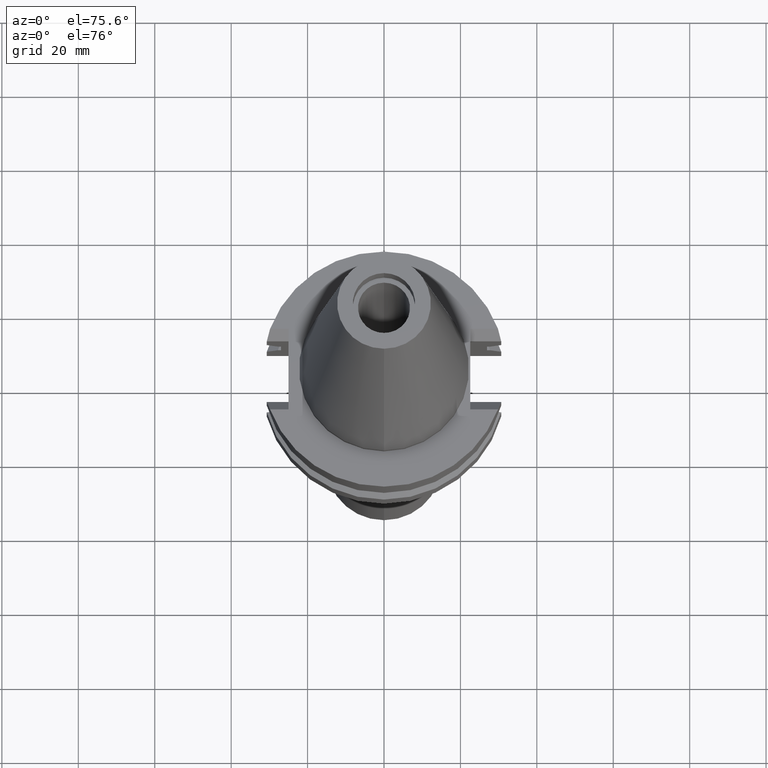
[diagram: clean part render]
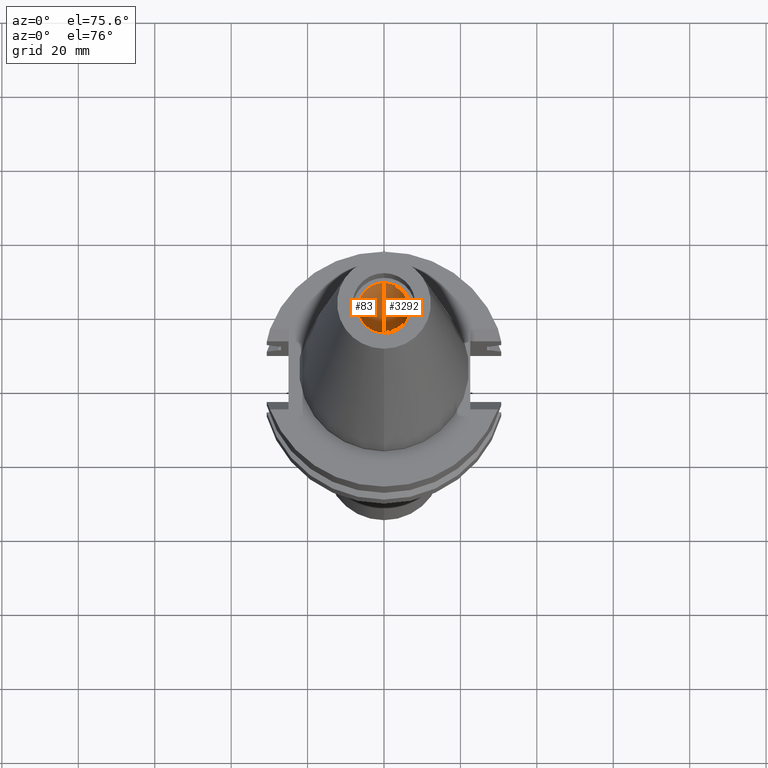
[diagram: same view with one multi-face feature highlighted, each face labeled with its STEP entity id]
A machine part, auxiliary view. The highlighted faces form ONE feature: a constant-radius fillet chain: 2 tangent blend faces with common blend radius 6.8 mm. The faces share edges in the B-rep.
Their STEP definitions:
[1] entity #3292 (Cylinder):
#47 = DIRECTION ( 'NONE',  ( 0.0000000000000000000, -1.000000000000000000, 0.0000000000000000000 ) ) ;
#79 = ORIENTED_EDGE ( 'NONE', *, *, #1282, .F. ) ;
#95 = VERTEX_POINT ( 'NONE', #2217 ) ;
#107 = DIRECTION ( 'NONE',  ( 0.0000000000000000000, -1.000000000000000000, 0.0000000000000000000 ) ) ;
#224 = CARTESIAN_POINT ( 'NONE',  ( 0.0000000000000000000, 6.799999999999999822, 1.136868377215999875E-13 ) ) ;
#322 = VERTEX_POINT ( 'NONE', #2047 ) ;
#593 = EDGE_CURVE ( 'NONE', #95, #859, #2732, .T. ) ;
#771 = DIRECTION ( 'NONE',  ( 0.0000000000000000000, 0.0000000000000000000, 1.000000000000000000 ) ) ;
#784 = CARTESIAN_POINT ( 'NONE',  ( 0.0000000000000000000, 0.0000000000000000000, 1.278976924367999843E-13 ) ) ;
#829 = CARTESIAN_POINT ( 'NONE',  ( 0.0000000000000000000, -6.799999999999999822, 1.136868377215999875E-13 ) ) ;
#836 = EDGE_CURVE ( 'NONE', #1010, #322, #2077, .T. ) ;
#859 = VERTEX_POINT ( 'NONE', #2636 ) ;
#864 = DIRECTION ( 'NONE',  ( 0.0000000000000000000, 0.0000000000000000000, -1.000000000000000000 ) ) ;
#872 = VECTOR ( 'NONE', #1329, 1000.000000000000000 ) ;
#1010 = VERTEX_POINT ( 'NONE', #829 ) ;
#1022 = DIRECTION ( 'NONE',  ( 0.0000000000000000000, -1.000000000000000000, 0.0000000000000000000 ) ) ;
#1024 = CIRCLE ( 'NONE', #1189, 6.799999999999999822 ) ;
#1086 = CARTESIAN_POINT ( 'NONE',  ( 0.0000000000000000000, 0.0000000000000000000, 76.24250000000000682 ) ) ;
#1189 = AXIS2_PLACEMENT_3D ( 'NONE', #784, #771, #1022 ) ;
#1253 = ORIENTED_EDGE ( 'NONE', *, *, #593, .F. ) ;
#1282 = EDGE_CURVE ( 'NONE', #1010, #95, #1024, .T. ) ;
#1329 = DIRECTION ( 'NONE',  ( 0.0000000000000000000, 0.0000000000000000000, 1.000000000000000000 ) ) ;
#1450 = VECTOR ( 'NONE', #1763, 1000.000000000000000 ) ;
#1483 = ORIENTED_EDGE ( 'NONE', *, *, #836, .T. ) ;
#1593 = CYLINDRICAL_SURFACE ( 'NONE', #3270, 6.799999999999999822 ) ;
#1763 = DIRECTION ( 'NONE',  ( 0.0000000000000000000, 0.0000000000000000000, 1.000000000000000000 ) ) ;
#1827 = CARTESIAN_POINT ( 'NONE',  ( 0.0000000000000000000, -6.799999999999999822, 1.136868377215999875E-13 ) ) ;
#2009 = AXIS2_PLACEMENT_3D ( 'NONE', #2596, #2372, #47 ) ;
#2047 = CARTESIAN_POINT ( 'NONE',  ( 0.0000000000000000000, -6.799999999999999822, 63.46999999999999886 ) ) ;
#2077 = LINE ( 'NONE', #1827, #872 ) ;
#2217 = CARTESIAN_POINT ( 'NONE',  ( 0.0000000000000000000, 6.799999999999999822, 1.136868377215999875E-13 ) ) ;
#2337 = EDGE_CURVE ( 'NONE', #322, #859, #3301, .T. ) ;
#2372 = DIRECTION ( 'NONE',  ( 0.0000000000000000000, 0.0000000000000000000, 1.000000000000000000 ) ) ;
#2596 = CARTESIAN_POINT ( 'NONE',  ( 0.0000000000000000000, 0.0000000000000000000, 63.46999999999999886 ) ) ;
#2623 = EDGE_LOOP ( 'NONE', ( #79, #1483, #2652, #1253 ) ) ;
#2636 = CARTESIAN_POINT ( 'NONE',  ( 0.0000000000000000000, 6.799999999999999822, 63.46999999999999886 ) ) ;
#2652 = ORIENTED_EDGE ( 'NONE', *, *, #2337, .T. ) ;
#2732 = LINE ( 'NONE', #224, #1450 ) ;
#3192 = FACE_OUTER_BOUND ( 'NONE', #2623, .T. ) ;
#3270 = AXIS2_PLACEMENT_3D ( 'NONE', #1086, #864, #107 ) ;
#3292 = ADVANCED_FACE ( 'NONE', ( #3192 ), #1593, .F. ) ;
#3301 = CIRCLE ( 'NONE', #2009, 6.799999999999999822 ) ;
[2] entity #83 (Cylinder):
#83 = ADVANCED_FACE ( 'NONE', ( #2015 ), #1187, .F. ) ;
#95 = VERTEX_POINT ( 'NONE', #2217 ) ;
#112 = AXIS2_PLACEMENT_3D ( 'NONE', #3260, #746, #2279 ) ;
#224 = CARTESIAN_POINT ( 'NONE',  ( 0.0000000000000000000, 6.799999999999999822, 1.136868377215999875E-13 ) ) ;
#257 = EDGE_LOOP ( 'NONE', ( #540, #3018, #950, #1592 ) ) ;
#322 = VERTEX_POINT ( 'NONE', #2047 ) ;
#540 = ORIENTED_EDGE ( 'NONE', *, *, #560, .T. ) ;
#560 = EDGE_CURVE ( 'NONE', #859, #322, #2530, .T. ) ;
#572 = EDGE_CURVE ( 'NONE', #1010, #95, #596, .T. ) ;
#593 = EDGE_CURVE ( 'NONE', #95, #859, #2732, .T. ) ;
#596 = CIRCLE ( 'NONE', #656, 6.799999999999999822 ) ;
#652 = DIRECTION ( 'NONE',  ( 0.0000000000000000000, 1.000000000000000000, 0.0000000000000000000 ) ) ;
#656 = AXIS2_PLACEMENT_3D ( 'NONE', #2198, #1944, #2641 ) ;
#746 = DIRECTION ( 'NONE',  ( 0.0000000000000000000, 0.0000000000000000000, -1.000000000000000000 ) ) ;
#751 = AXIS2_PLACEMENT_3D ( 'NONE', #2675, #1613, #652 ) ;
#829 = CARTESIAN_POINT ( 'NONE',  ( 0.0000000000000000000, -6.799999999999999822, 1.136868377215999875E-13 ) ) ;
#836 = EDGE_CURVE ( 'NONE', #1010, #322, #2077, .T. ) ;
#859 = VERTEX_POINT ( 'NONE', #2636 ) ;
#872 = VECTOR ( 'NONE', #1329, 1000.000000000000000 ) ;
#950 = ORIENTED_EDGE ( 'NONE', *, *, #572, .T. ) ;
#1010 = VERTEX_POINT ( 'NONE', #829 ) ;
#1187 = CYLINDRICAL_SURFACE ( 'NONE', #112, 6.799999999999999822 ) ;
#1329 = DIRECTION ( 'NONE',  ( 0.0000000000000000000, 0.0000000000000000000, 1.000000000000000000 ) ) ;
#1450 = VECTOR ( 'NONE', #1763, 1000.000000000000000 ) ;
#1592 = ORIENTED_EDGE ( 'NONE', *, *, #593, .T. ) ;
#1613 = DIRECTION ( 'NONE',  ( 0.0000000000000000000, 0.0000000000000000000, 1.000000000000000000 ) ) ;
#1763 = DIRECTION ( 'NONE',  ( 0.0000000000000000000, 0.0000000000000000000, 1.000000000000000000 ) ) ;
#1827 = CARTESIAN_POINT ( 'NONE',  ( 0.0000000000000000000, -6.799999999999999822, 1.136868377215999875E-13 ) ) ;
#1944 = DIRECTION ( 'NONE',  ( 0.0000000000000000000, 0.0000000000000000000, -1.000000000000000000 ) ) ;
#2015 = FACE_OUTER_BOUND ( 'NONE', #257, .T. ) ;
#2047 = CARTESIAN_POINT ( 'NONE',  ( 0.0000000000000000000, -6.799999999999999822, 63.46999999999999886 ) ) ;
#2077 = LINE ( 'NONE', #1827, #872 ) ;
#2198 = CARTESIAN_POINT ( 'NONE',  ( 0.0000000000000000000, 0.0000000000000000000, 1.278976924367999843E-13 ) ) ;
#2217 = CARTESIAN_POINT ( 'NONE',  ( 0.0000000000000000000, 6.799999999999999822, 1.136868377215999875E-13 ) ) ;
#2279 = DIRECTION ( 'NONE',  ( 0.0000000000000000000, -1.000000000000000000, 0.0000000000000000000 ) ) ;
#2530 = CIRCLE ( 'NONE', #751, 6.799999999999999822 ) ;
#2636 = CARTESIAN_POINT ( 'NONE',  ( 0.0000000000000000000, 6.799999999999999822, 63.46999999999999886 ) ) ;
#2641 = DIRECTION ( 'NONE',  ( 0.0000000000000000000, -1.000000000000000000, 0.0000000000000000000 ) ) ;
#2675 = CARTESIAN_POINT ( 'NONE',  ( 0.0000000000000000000, 0.0000000000000000000, 63.46999999999999886 ) ) ;
#2732 = LINE ( 'NONE', #224, #1450 ) ;
#3018 = ORIENTED_EDGE ( 'NONE', *, *, #836, .F. ) ;
#3260 = CARTESIAN_POINT ( 'NONE',  ( 0.0000000000000000000, 0.0000000000000000000, 76.24250000000000682 ) ) ;